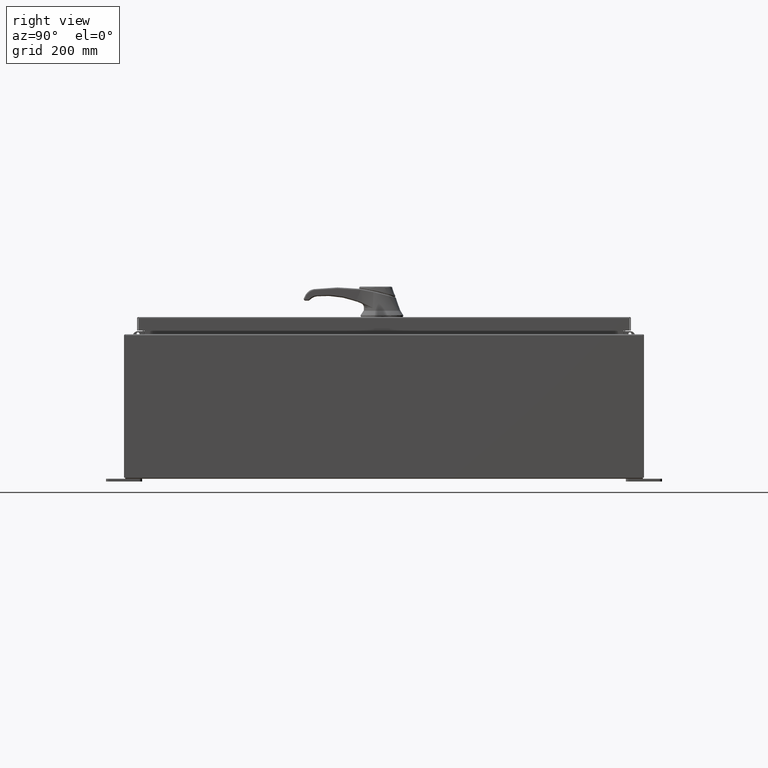
[diagram: clean part render]
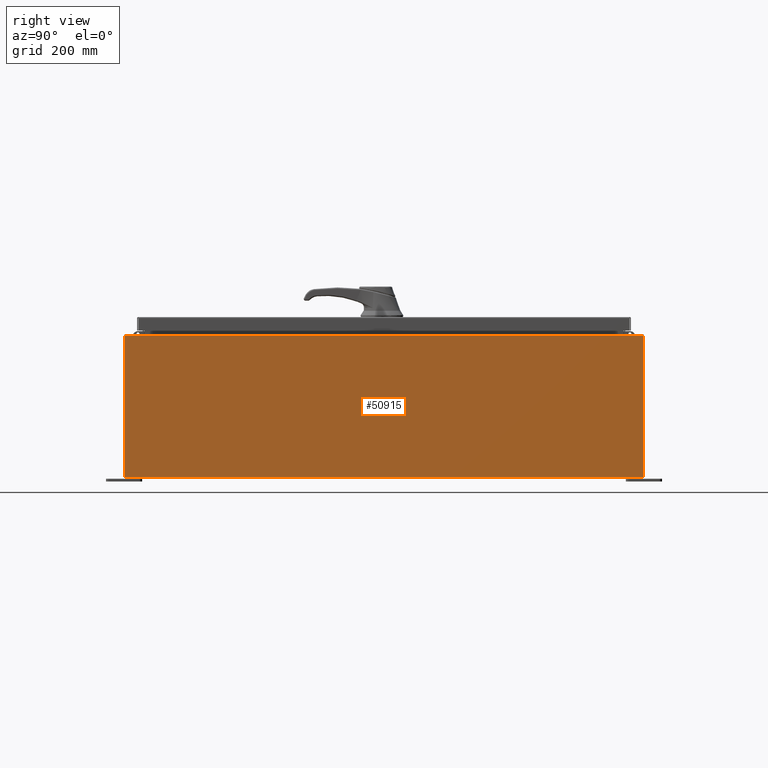
[diagram: same view with one face highlighted and labeled with its STEP entity id]
A machine part, right view. The second image highlights one B-rep face of the part: STEP entity #50915.
In plain terms, the highlighted planar face has unit normal (-1, 0, 0).
Its self-contained STEP definition (entity closure, byte-faithful):
#2765 = VECTOR ( 'NONE', #32996, 39.37007874015748100 ) ;
#3987 = CARTESIAN_POINT ( 'NONE',  ( 15.00000000000003400, -17.92530000000000000, 9.837600000000001900 ) ) ;
#7897 = VECTOR ( 'NONE', #19941, 39.37007874015748100 ) ;
#10284 = CARTESIAN_POINT ( 'NONE',  ( 14.99999999999999800, -17.92530000000000000, -5.310705656892488900E-014 ) ) ;
#10995 = VECTOR ( 'NONE', #56121, 39.37007874015748100 ) ;
#19941 = DIRECTION ( 'NONE',  ( -3.523082860860888200E-015, 0.0000000000000000000, -1.000000000000000000 ) ) ;
#20744 = ORIENTED_EDGE ( 'NONE', *, *, #68346, .F. ) ;
#24203 = CARTESIAN_POINT ( 'NONE',  ( 14.99999999999999800, 17.92530000000000000, -4.916003674356303100E-014 ) ) ;
#24333 = VERTEX_POINT ( 'NONE', #75847 ) ;
#26944 = ORIENTED_EDGE ( 'NONE', *, *, #87835, .T. ) ;
#26972 = PLANE ( 'NONE',  #37792 ) ;
#28936 = CARTESIAN_POINT ( 'NONE',  ( 14.99999999999999800, -17.92530000000000000, 0.01299999999999984700 ) ) ;
#32996 = DIRECTION ( 'NONE',  ( 3.523082860860888200E-015, -2.201926788038055100E-016, 1.000000000000000000 ) ) ;
#37792 = AXIS2_PLACEMENT_3D ( 'NONE', #94025, #103682, #46236 ) ;
#39262 = ORIENTED_EDGE ( 'NONE', *, *, #103225, .T. ) ;
#46236 = DIRECTION ( 'NONE',  ( 3.523082860860887800E-015, 0.0000000000000000000, 1.000000000000000000 ) ) ;
#50915 = ADVANCED_FACE ( 'NONE', ( #71459 ), #26972, .F. ) ;
#53691 = LINE ( 'NONE', #24203, #2765 ) ;
#56121 = DIRECTION ( 'NONE',  ( -0.0000000000000000000, -1.000000000000000000, -0.0000000000000000000 ) ) ;
#59764 = ORIENTED_EDGE ( 'NONE', *, *, #92559, .T. ) ;
#61929 = VERTEX_POINT ( 'NONE', #3987 ) ;
#64918 = LINE ( 'NONE', #103962, #10995 ) ;
#67962 = CARTESIAN_POINT ( 'NONE',  ( 14.99999999999999800, 17.92530000000000000, 0.01299999999999766100 ) ) ;
#68346 = EDGE_CURVE ( 'NONE', #81648, #108289, #97061, .T. ) ;
#71459 = FACE_OUTER_BOUND ( 'NONE', #103274, .T. ) ;
#71553 = VECTOR ( 'NONE', #77134, 39.37007874015748100 ) ;
#75847 = CARTESIAN_POINT ( 'NONE',  ( 15.00000000000003400, 17.92530000000000000, 9.837599999999994800 ) ) ;
#77134 = DIRECTION ( 'NONE',  ( 2.147696684564447600E-031, -1.000000000000000000, 6.096072018129156600E-017 ) ) ;
#78714 = CARTESIAN_POINT ( 'NONE',  ( 14.99999999999999800, -17.92530000000000000, 0.01300000000000022300 ) ) ;
#81648 = VERTEX_POINT ( 'NONE', #67962 ) ;
#87414 = LINE ( 'NONE', #10284, #7897 ) ;
#87835 = EDGE_CURVE ( 'NONE', #61929, #108289, #87414, .T. ) ;
#92559 = EDGE_CURVE ( 'NONE', #24333, #61929, #64918, .T. ) ;
#94025 = CARTESIAN_POINT ( 'NONE',  ( 14.99999999999999800, 0.0000000000000000000, -5.310705656892488900E-014 ) ) ;
#97061 = LINE ( 'NONE', #28936, #71553 ) ;
#103225 = EDGE_CURVE ( 'NONE', #81648, #24333, #53691, .T. ) ;
#103274 = EDGE_LOOP ( 'NONE', ( #59764, #26944, #20744, #39262 ) ) ;
#103682 = DIRECTION ( 'NONE',  ( -1.000000000000000000, 0.0000000000000000000, 3.523082860860887800E-015 ) ) ;
#103962 = CARTESIAN_POINT ( 'NONE',  ( 15.00000000000003400, 17.92530000000000000, 9.837599999999994800 ) ) ;
#108289 = VERTEX_POINT ( 'NONE', #78714 ) ;